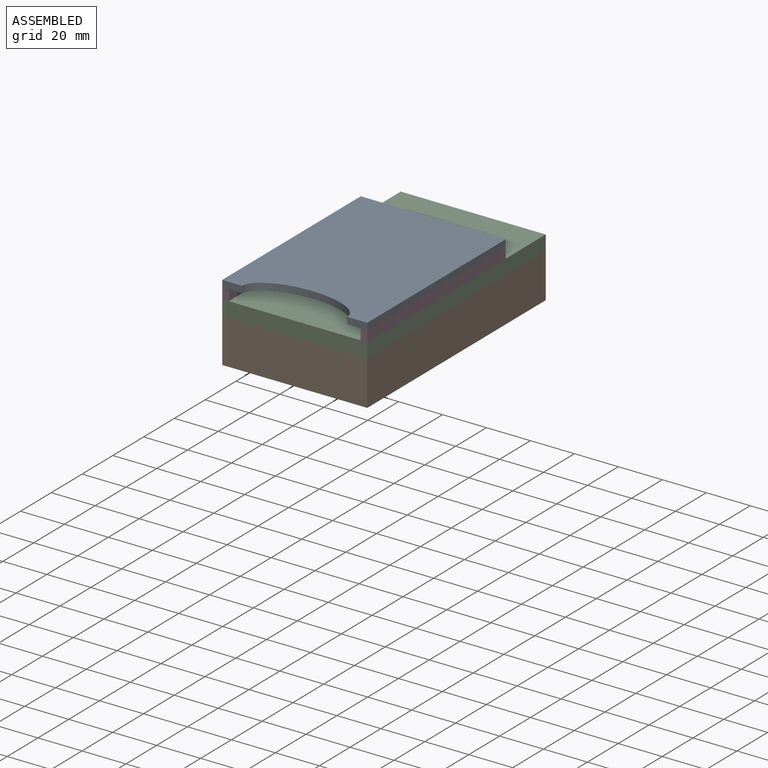
[diagram: assembled view]
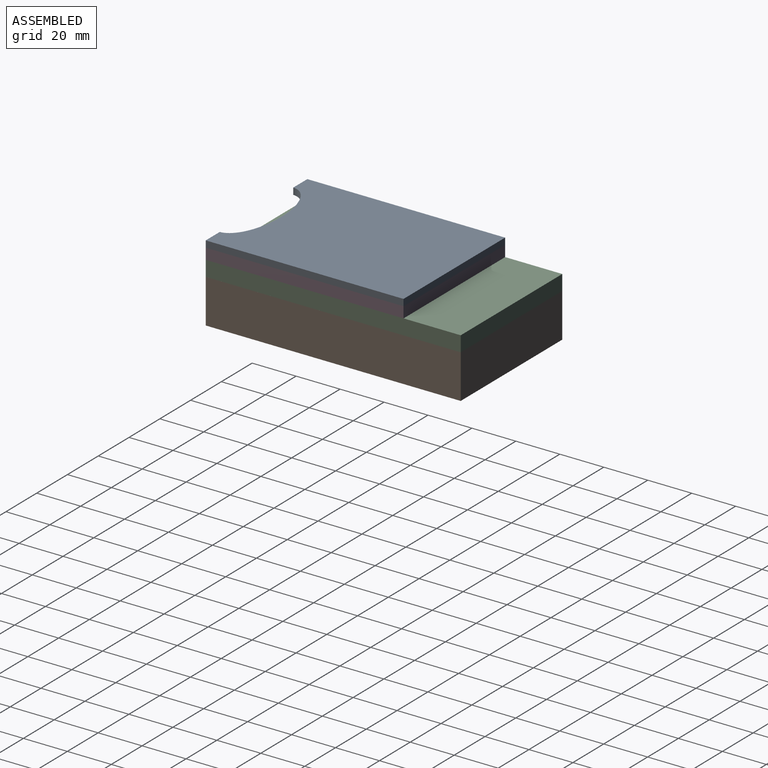
[diagram: assembled view, second angle]
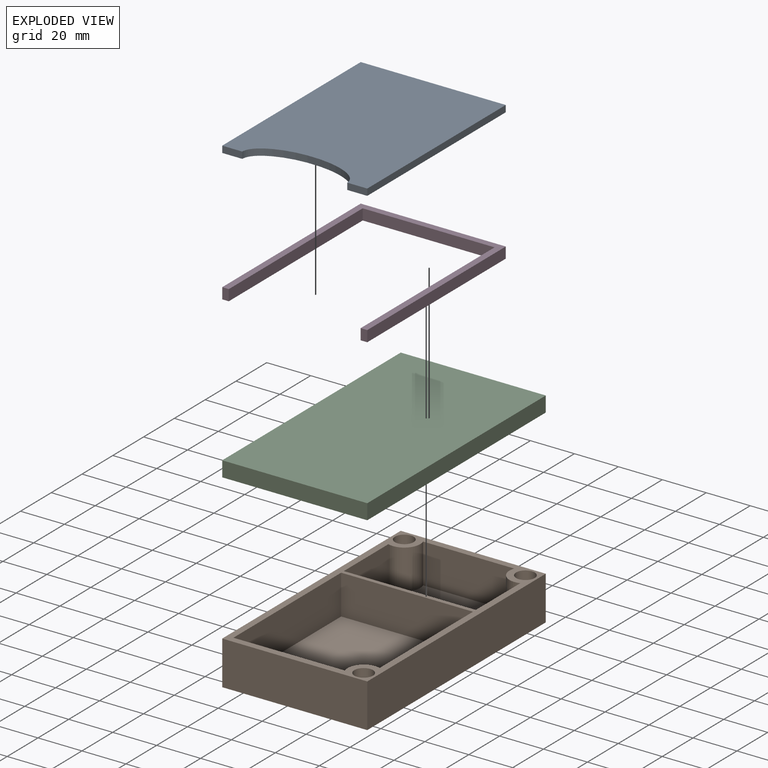
[diagram: exploded view]
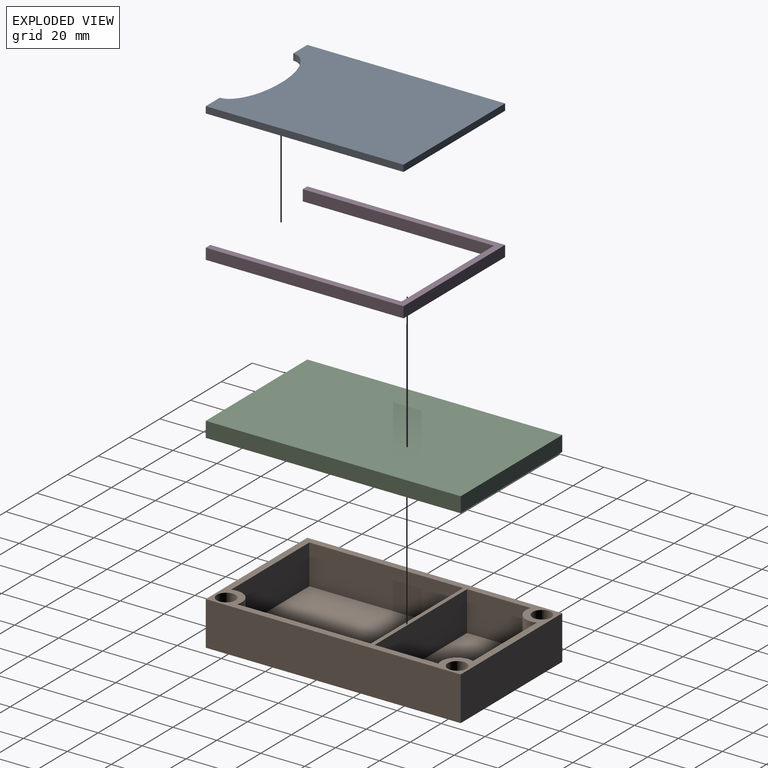
[diagram: exploded view, second angle]
ASSEMBLY  parts=4 mates=3
PART A: 8 faces, bbox 66x90x3 mm
  f0: plane 90x3mm, normal (-1,0,0), area 270mm2, adj f1,f5,f6,f7
  f1: plane 9.13x3mm, normal (0,-1,0), area 27.4mm2, adj f0,f2,f6,f7
  f2: extruded ~47.73x11.21mm, area 170.7mm2, adj f1,f3,f6,f7
  f3: plane 9.13x3mm, normal (0,-1,0), area 27.4mm2, adj f2,f4,f6,f7
  f4: plane 90x3mm, normal (1,0,0), area 270mm2, adj f3,f5,f6,f7
  f5: plane 66x3mm, normal (0,1,0), area 198mm2, adj f0,f4,f6,f7
  f6: plane 90x66mm, normal (0,0,1), area 5519.8mm2, adj f0,f1,f2,f3,f4,f5
  f7: plane 90x66mm, normal (0,0,-1), area 5519.8mm2, adj f0,f1,f2,f3,f4,f5
PART B: 25 faces, bbox 66x116x20 mm
  f0: plane 66x20mm, normal (0,-1,0), area 1320mm2, adj f1,f17,f18,f19
  f1: plane 116x20mm, normal (1,0,0), area 2320mm2, adj f0,f2,f18,f19
  f2: plane 66x20mm, normal (0,1,0), area 1320mm2, adj f1,f17,f18,f19
  f3: plane 70x18mm, normal (1,0,0), area 1260mm2, adj f4,f15,f18,f21
  f4: plane 60x18mm, normal (0,-1,0), area 1080mm2, adj f3,f5,f18,f21
  f5: plane 60.73x18mm, normal (-1,0,0), area 1093.1mm2, adj f4,f6,f18,f21
  f6: cylinder r=7.25mm len=18mm, axis (0,0,-1), area 294.8mm2, adj f5,f15,f18,f21
  f7: plane 60x18mm, normal (0,1,0), area 1080mm2, adj f8,f16,f18,f20
  f8: plane 28.97x18mm, normal (1,0,0), area 521.4mm2, adj f7,f9,f18,f20
  f9: cylinder r=7.25mm len=18mm, axis (0,0,-1), area 294.8mm2, adj f8,f10,f18,f20
  f10: plane 41.46x18mm, normal (0,-1,0), area 746.3mm2, adj f9,f11,f18,f20
  f11: cylinder r=7.25mm len=18mm, axis (0,0,-1), area 294.8mm2, adj f10,f16,f18,f20
  f12: cylinder r=4.25mm len=18mm, axis (0,0,-1), area 480.7mm2, adj f18,f24
  f13: cylinder r=4.25mm len=18mm, axis (0,0,-1), area 480.7mm2, adj f18,f23
  f14: cylinder r=4.25mm len=18mm, axis (0,0,-1), area 480.7mm2, adj f18,f22
  f15: plane 50.73x18mm, normal (0,1,0), area 913.1mm2, adj f3,f6,f18,f21
  f16: plane 28.97x18mm, normal (-1,0,0), area 521.4mm2, adj f7,f11,f18,f20
  f17: plane 116x20mm, normal (-1,0,0), area 2320mm2, adj f0,f2,f18,f19
  f18: plane 116x66mm, normal (0,0,1), area 1237.5mm2, adj f0,f1,f2,f3,f4,f5,f6,f7
  f19: plane 116x66mm, normal (0,0,-1), area 7656mm2, adj f0,f1,f2,f17
  f20: plane 60x38.24mm, normal (0,0,1), area 2130.2mm2, adj f7,f8,f9,f10,f11,f16
  f21: plane 70x60mm, normal (0,0,1), area 4118mm2, adj f3,f4,f5,f6,f15
  f22: plane 8.5x8.5mm, normal (0,0,1), area 56.7mm2, adj f14
  f23: plane 8.5x8.5mm, normal (0,0,1), area 56.7mm2, adj f13
  f24: plane 8.5x8.5mm, normal (0,0,1), area 56.7mm2, adj f12
PART C: 12 faces, bbox 66x116x7 mm
  f0: plane 116x66mm, normal (0,0,-1), area 7485.8mm2, adj f1,f2,f3,f4,f6,f8,f10
  f1: plane 116x7mm, normal (1,0,0), area 812mm2, adj f0,f2,f4,f5
  f2: plane 66x7mm, normal (0,1,0), area 462mm2, adj f0,f1,f3,f5
  f3: plane 116x7mm, normal (-1,0,0), area 812mm2, adj f0,f2,f4,f5
  f4: plane 66x7mm, normal (0,-1,0), area 462mm2, adj f0,f1,f3,f5
  f5: plane 116x66mm, normal (0,0,1), area 7656mm2, adj f1,f2,f3,f4
  f6: cylinder r=4.25mm len=8.5mm, axis (0,0,-1), area 133.5mm2, adj f0,f7
  f7: plane 8.5x8.5mm, normal (0,0,-1), area 56.7mm2, adj f6
  f8: cylinder r=4.25mm len=8.5mm, axis (0,0,-1), area 133.5mm2, adj f0,f9
  f9: plane 8.5x8.5mm, normal (0,0,-1), area 56.7mm2, adj f8
  f10: cylinder r=4.25mm len=8.5mm, axis (0,0,-1), area 133.5mm2, adj f0,f11
  f11: plane 8.5x8.5mm, normal (0,0,-1), area 56.7mm2, adj f10
PART D: 10 faces, bbox 66x90x5 mm
  f0: plane 87x5mm, normal (-1,0,0), area 435mm2, adj f1,f7,f8,f9
  f1: plane 60x5mm, normal (0,1,0), area 300mm2, adj f0,f2,f8,f9
  f2: plane 87x5mm, normal (1,0,0), area 435mm2, adj f1,f3,f8,f9
  f3: plane 5x3mm, normal (0,1,0), area 15mm2, adj f2,f4,f8,f9
  f4: plane 90x5mm, normal (-1,0,0), area 450mm2, adj f3,f5,f8,f9
  f5: plane 66x5mm, normal (0,-1,0), area 330mm2, adj f4,f6,f8,f9
  f6: plane 90x5mm, normal (1,0,0), area 450mm2, adj f5,f7,f8,f9
  f7: plane 5x3mm, normal (0,1,0), area 15mm2, adj f0,f6,f8,f9
  f8: plane 90x66mm, normal (0,0,1), area 720mm2, adj f0,f1,f2,f3,f4,f5,f6,f7
  f9: plane 90x66mm, normal (0,0,-1), area 720mm2, adj f0,f1,f2,f3,f4,f5,f6,f7
PLACE A t=(26.16,-62.62,69.34)mm
PLACE B t=(26.16,-49.62,37.34)mm
PLACE C rot(axis=(0,0,-1),180deg) t=(26.16,-49.62,57.34)mm
PLACE D rot(axis=(-1,0,0),180deg) t=(22.48,-30.75,69.34)mm
MATE fastened A.f7 <-> D.f9  axis (0,0,-1) through (59.16,-107.62,69.34)mm
MATE fastened D.f8 <-> C.f5  axis (0,0,-1) through (59.16,-107.62,64.34)mm
MATE fastened B.f18 <-> C.f0  axis (0,0,1) through (-6.84,-107.62,57.34)mm
